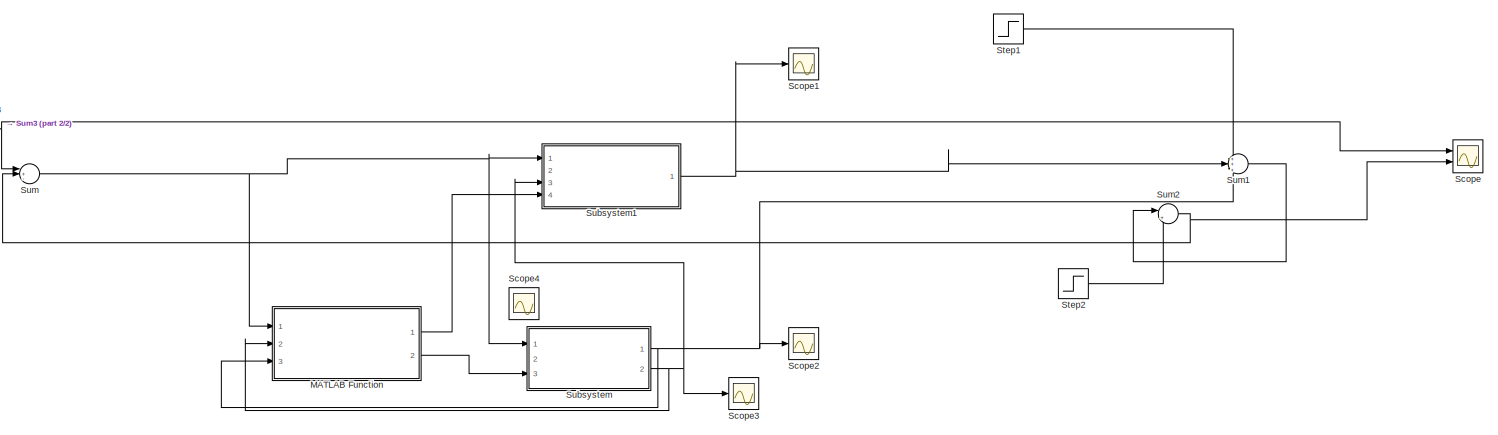
[diagram: root canvas - part 1/2, most of the canvas]
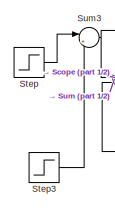
[diagram: root canvas - part 2/2, middle left region]
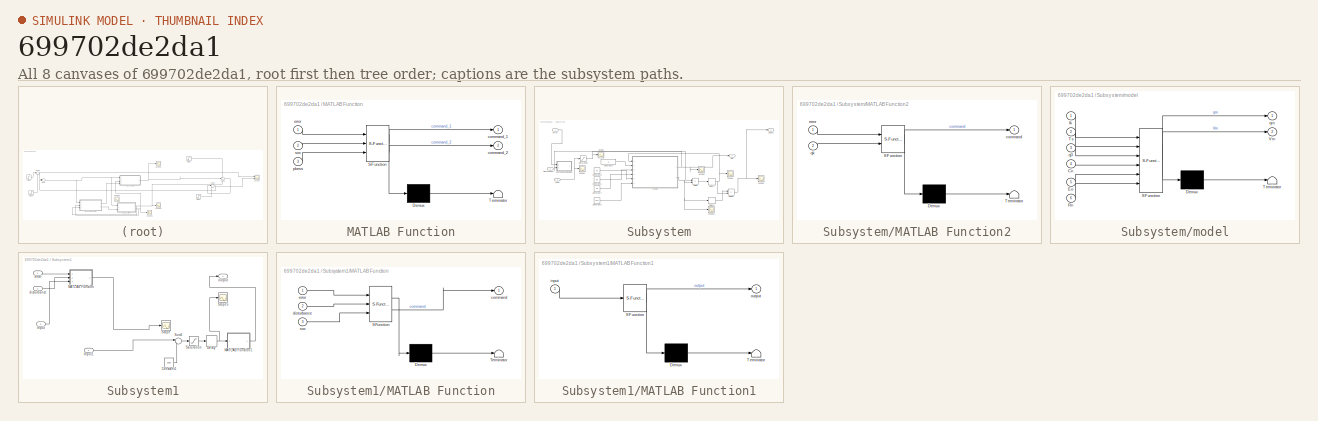
[diagram: thumbnail index - all 8 canvases of the model, root first then tree order]
MODEL slx_699702de2da1
KIND model
CONFIG AbsTol = auto
CONFIG EnableMultiTasking = off
CONFIG FixedStep = auto
CONFIG MaxStep = auto
CONFIG MinStep = auto
CONFIG RelTol = 1e-3
CONFIG SampleTimeConstraint = Unconstrained
CONFIG SolverName = VariableStepAuto
CONFIG StartTime = 0.0
CONFIG StopTime = 2000
BLOCK [SubSystem] MATLAB Function
  ErrorFcn = Stateflow.Translate.translate
  PermitHierarchicalResolution = ExplicitOnly
  Ports = [3, 2]
  RequestExecContextInheritance = off
  SFBlockType = MATLAB Function
  TreatAsAtomicUnit = on
BLOCK [Demux] MATLAB Function/ Demux 
  Outputs = 1
  Ports = [1, 1]
BLOCK [S-Function] MATLAB Function/ SFunction 
  EnableBusSupport = on
  FunctionName = sf_sfun
  PortCounts = [3 3]
  Ports = [3, 3]
  SFcnIsStateOwnerBlock = off
  SFunctionDeploymentMode = off
  Tag = Stateflow S-Function 3
BLOCK [Terminator] MATLAB Function/ Terminator 
BLOCK [Outport] MATLAB Function/command_1
BLOCK [Outport] MATLAB Function/command_2
  Port = 2
BLOCK [Inport] MATLAB Function/error
BLOCK [Inport] MATLAB Function/pbess
  Port = 3
BLOCK [Inport] MATLAB Function/soc
  Port = 2
BLOCK [Scope] Scope
  Floating = off
  NumInputPorts = 2
  Ports = [2]
  ScopeSpecificationString = Simulink.scopes.TimeScopeBlockCfg('CurrentConfiguration', extmgr.ConfigurationSet(extmgr.Configuration('Core','General UI',true),extmgr.Configuration('Core','Source UI',true),extmgr.Configuration('Sources','WiredSimulink',true),extmgr.Configuration('Visuals','Time Domain',true,'SerializedDisplays',{struct('MinYLimReal','938.6839','MaxYLimReal','1551.84487','YLabelReal','','MinYLimMag','938.6839','...<+1445ch>
BLOCK [Scope] Scope1
  Floating = off
  NumInputPorts = 1
  Ports = [1]
  ScopeSpecificationString = Simulink.scopes.TimeScopeBlockCfg('CurrentConfiguration', extmgr.ConfigurationSet(extmgr.Configuration('Core','General UI',true),extmgr.Configuration('Core','Source UI',true),extmgr.Configuration('Sources','WiredSimulink',true,'DataLoggingVariableName','ScopeData1'),extmgr.Configuration('Visuals','Time Domain',true,'SerializedDisplays',{struct('MinYLimReal','952.68511','MaxYLimReal','1425.83403','...<+1467ch>
BLOCK [Scope] Scope2
  Floating = off
  NumInputPorts = 1
  Ports = [1]
  ScopeSpecificationString = Simulink.scopes.TimeScopeBlockCfg('CurrentConfiguration', extmgr.ConfigurationSet(extmgr.Configuration('Core','General UI',true),extmgr.Configuration('Core','Source UI',true),extmgr.Configuration('Sources','WiredSimulink',true,'DataLoggingVariableName','ScopeData2'),extmgr.Configuration('Visuals','Time Domain',true,'SerializedDisplays',{struct('MinYLimReal','-104.13534','MaxYLimReal','152.02665','...<+1437ch>
BLOCK [Scope] Scope3
  Floating = off
  NumInputPorts = 1
  Ports = [1]
  ScopeSpecificationString = Simulink.scopes.TimeScopeBlockCfg('CurrentConfiguration', extmgr.ConfigurationSet(extmgr.Configuration('Core','General UI',true),extmgr.Configuration('Core','Source UI',true),extmgr.Configuration('Sources','WiredSimulink',true,'DataLoggingVariableName','ScopeData3'),extmgr.Configuration('Visuals','Time Domain',true,'SerializedDisplays',{struct('MinYLimReal','25.23044','MaxYLimReal','101.6687','YLa...<+1477ch>
BLOCK [Scope] Scope4
  Floating = off
  NumInputPorts = 1
  Ports = [1]
  ScopeSpecificationString = Simulink.scopes.TimeScopeBlockCfg('CurrentConfiguration', extmgr.ConfigurationSet(extmgr.Configuration('Core','General UI',true),extmgr.Configuration('Core','Source UI',true),extmgr.Configuration('Sources','WiredSimulink',true,'DataLoggingVariableName','ScopeData10'),extmgr.Configuration('Visuals','Time Domain',true),extmgr.Configuration('Tools','Plot Navigation',true),extmgr.Configuration('Tools'...<+41ch>
BLOCK [Step] Step
  After = 1300
  Before = 1000
  Time = 20
BLOCK [Step] Step1
  After = -200
  Time = 100
BLOCK [Step] Step2
  After = 100
  Time = 200
BLOCK [Step] Step3
  After = -100
  Time = 400
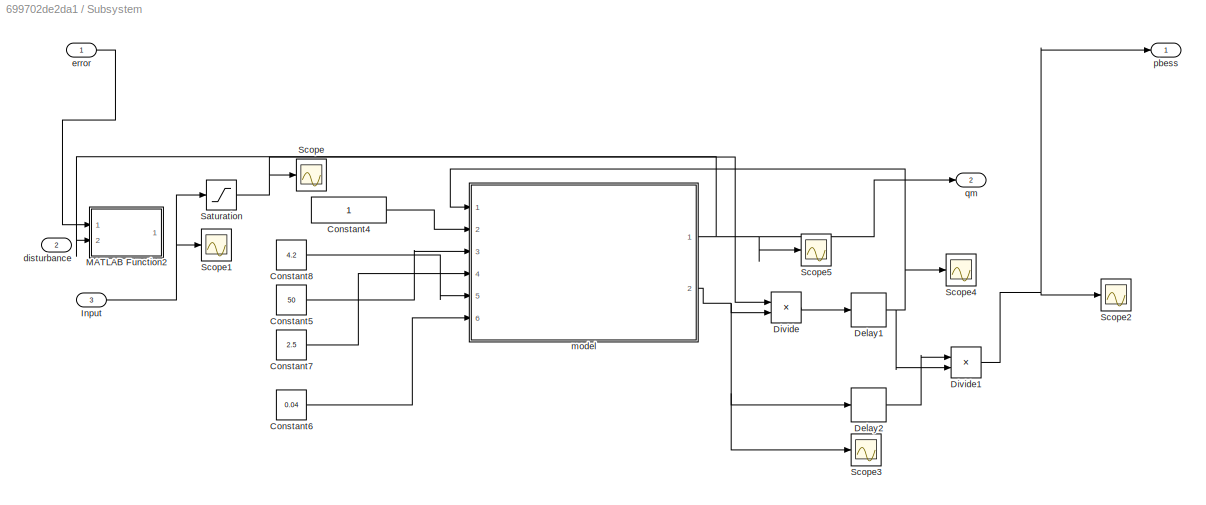
BLOCK [SubSystem] Subsystem
  Ports = [3, 2]
  RequestExecContextInheritance = off
BLOCK [Constant] Subsystem/Constant4
  SampleTime = 1
BLOCK [Constant] Subsystem/Constant5
  Value = 50
BLOCK [Constant] Subsystem/Constant6
  Value = 0.04
BLOCK [Constant] Subsystem/Constant7
  Value = 2.5
BLOCK [Constant] Subsystem/Constant8
  Value = 4.2
BLOCK [Delay] Subsystem/Delay1
  DelayLength = 1
  InitialCondition = 0
  InputPortMap = u0
  NameLocation = right
  Ports = [1, 1]
  SampleTime = 1
BLOCK [Delay] Subsystem/Delay2
  DelayLength = 1
  InitialCondition = 0
  InputPortMap = u0
  NameLocation = right
  Ports = [1, 1]
  SampleTime = 1
BLOCK [Product] Subsystem/Divide
  Inputs = */
  Ports = [2, 1]
BLOCK [Product] Subsystem/Divide1
  Inputs = **
  Ports = [2, 1]
BLOCK [Inport] Subsystem/Input
  Port = 3
BLOCK [SubSystem] Subsystem/MATLAB Function2
  ErrorFcn = Stateflow.Translate.translate
  PermitHierarchicalResolution = ExplicitOnly
  Ports = [2, 1]
  RequestExecContextInheritance = off
  SFBlockType = MATLAB Function
  TreatAsAtomicUnit = on
BLOCK [Demux] Subsystem/MATLAB Function2/ Demux 
  Outputs = 1
  Ports = [1, 1]
BLOCK [S-Function] Subsystem/MATLAB Function2/ SFunction 
  EnableBusSupport = on
  FunctionName = sf_sfun
  PortCounts = [2 2]
  Ports = [2, 2]
  SFcnIsStateOwnerBlock = off
  SFunctionDeploymentMode = off
  Tag = Stateflow S-Function 5
BLOCK [Terminator] Subsystem/MATLAB Function2/ Terminator 
BLOCK [Outport] Subsystem/MATLAB Function2/command
BLOCK [Inport] Subsystem/MATLAB Function2/error
BLOCK [Inport] Subsystem/MATLAB Function2/qk
  Port = 2
BLOCK [Saturate] Subsystem/Saturation
  LowerLimit = -140
  UpperLimit = 140
BLOCK [Scope] Subsystem/Scope
  Floating = off
  NumInputPorts = 1
  Ports = [1]
  ScopeSpecificationString = Simulink.scopes.TimeScopeBlockCfg('CurrentConfiguration', extmgr.ConfigurationSet(extmgr.Configuration('Core','General UI',true),extmgr.Configuration('Core','Source UI',true),extmgr.Configuration('Sources','WiredSimulink',true,'DataLoggingVariableName','ScopeData6'),extmgr.Configuration('Visuals','Time Domain',true,'SerializedDisplays',{struct('MinYLimReal','-104.13534','MaxYLimReal','152.02665','...<+1412ch>
BLOCK [Scope] Subsystem/Scope1
  Floating = off
  NumInputPorts = 1
  Ports = [1]
  ScopeSpecificationString = Simulink.scopes.TimeScopeBlockCfg('CurrentConfiguration', extmgr.ConfigurationSet(extmgr.Configuration('Core','General UI',true),extmgr.Configuration('Core','Source UI',true),extmgr.Configuration('Sources','WiredSimulink',true,'DataLoggingVariableName','ScopeData8'),extmgr.Configuration('Visuals','Time Domain',true,'SerializedDisplays',{struct('MinYLimReal','-104.13534','MaxYLimReal','152.02665','...<+1468ch>
BLOCK [Scope] Subsystem/Scope2
  Floating = off
  NumInputPorts = 1
  Ports = [1]
  ScopeSpecificationString = Simulink.scopes.TimeScopeBlockCfg('CurrentConfiguration', extmgr.ConfigurationSet(extmgr.Configuration('Core','General UI',true),extmgr.Configuration('Core','Source UI',true),extmgr.Configuration('Sources','WiredSimulink',true,'DataLoggingVariableName','ScopeData2'),extmgr.Configuration('Visuals','Time Domain',true,'SerializedDisplays',{struct('MinYLimReal','-104.13534','MaxYLimReal','152.02665','...<+1444ch>
BLOCK [Scope] Subsystem/Scope3
  Floating = off
  NumInputPorts = 1
  Ports = [1]
  ScopeSpecificationString = Simulink.scopes.TimeScopeBlockCfg('CurrentConfiguration', extmgr.ConfigurationSet(extmgr.Configuration('Core','General UI',true),extmgr.Configuration('Core','Source UI',true),extmgr.Configuration('Sources','WiredSimulink',true,'DataLoggingVariableName','ScopeData3'),extmgr.Configuration('Visuals','Time Domain',true,'SerializedDisplays',{struct('MinYLimReal','7.2405','MaxYLimReal','8.52883','YLabel...<+1415ch>
BLOCK [Scope] Subsystem/Scope4
  Floating = off
  NumInputPorts = 1
  Ports = [1]
  ScopeSpecificationString = Simulink.scopes.TimeScopeBlockCfg('CurrentConfiguration', extmgr.ConfigurationSet(extmgr.Configuration('Core','General UI',true),extmgr.Configuration('Core','Source UI',true),extmgr.Configuration('Sources','WiredSimulink',true,'DataLoggingVariableName','ScopeData4'),extmgr.Configuration('Visuals','Time Domain',true,'SerializedDisplays',{struct('MinYLimReal','-13.71159','MaxYLimReal','20.02924','YL...<+1400ch>
BLOCK [Scope] Subsystem/Scope5
  Floating = off
  NumInputPorts = 1
  Ports = [1]
  ScopeSpecificationString = Simulink.scopes.TimeScopeBlockCfg('CurrentConfiguration', extmgr.ConfigurationSet(extmgr.Configuration('Core','General UI',true),extmgr.Configuration('Core','Source UI',true),extmgr.Configuration('Sources','WiredSimulink',true,'DataLoggingVariableName','ScopeData9'),extmgr.Configuration('Visuals','Time Domain',true,'SerializedDisplays',{struct('MinYLimReal','25.09566','MaxYLimReal','102.88167','YL...<+1403ch>
BLOCK [Inport] Subsystem/disturbance
  Port = 2
BLOCK [Inport] Subsystem/error
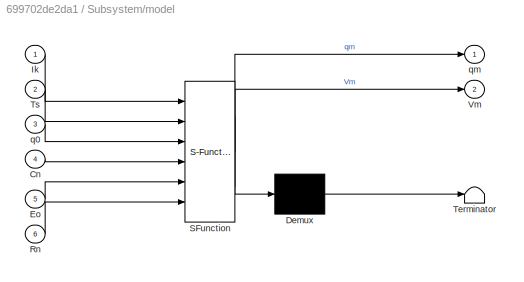
BLOCK [SubSystem] Subsystem/model
  ErrorFcn = Stateflow.Translate.translate
  PermitHierarchicalResolution = ExplicitOnly
  Ports = [6, 2]
  RequestExecContextInheritance = off
  SFBlockType = MATLAB Function
  SystemSampleTime = 1
  TreatAsAtomicUnit = on
BLOCK [Demux] Subsystem/model/ Demux 
  Outputs = 1
  Ports = [1, 1]
BLOCK [S-Function] Subsystem/model/ SFunction 
  EnableBusSupport = on
  FunctionName = sf_sfun
  PortCounts = [6 3]
  Ports = [6, 3]
  SFcnIsStateOwnerBlock = off
  SFunctionDeploymentMode = off
  Tag = Stateflow S-Function 6
BLOCK [Terminator] Subsystem/model/ Terminator 
BLOCK [Inport] Subsystem/model/Cn
  Port = 4
BLOCK [Inport] Subsystem/model/Eo
  Port = 5
BLOCK [Inport] Subsystem/model/Ik
BLOCK [Inport] Subsystem/model/Rn
  Port = 6
BLOCK [Inport] Subsystem/model/Ts
  Port = 2
BLOCK [Outport] Subsystem/model/Vm
  Port = 2
BLOCK [Inport] Subsystem/model/q0
  Port = 3
BLOCK [Outport] Subsystem/model/qm
BLOCK [Outport] Subsystem/pbess
BLOCK [Outport] Subsystem/qm
  Port = 2
BLOCK [SubSystem] Subsystem1
  Ports = [4, 1]
  RequestExecContextInheritance = off
BLOCK [Constant] Subsystem1/Constant1
  Value = 1000
BLOCK [Delay] Subsystem1/Delay
  DelayLength = 1
  InitialCondition = 1000
  InputPortMap = u0
  NameLocation = right
  Ports = [1, 1]
  SampleTime = 1
BLOCK [Inport] Subsystem1/Input
  Port = 3
BLOCK [Inport] Subsystem1/Input1
  Port = 4
BLOCK [SubSystem] Subsystem1/MATLAB Function
  ErrorFcn = Stateflow.Translate.translate
  PermitHierarchicalResolution = ExplicitOnly
  Ports = [3, 1]
  RequestExecContextInheritance = off
  SFBlockType = MATLAB Function
  TreatAsAtomicUnit = on
BLOCK [Demux] Subsystem1/MATLAB Function/ Demux 
  Outputs = 1
  Ports = [1, 1]
BLOCK [S-Function] Subsystem1/MATLAB Function/ SFunction 
  EnableBusSupport = on
  FunctionName = sf_sfun
  PortCounts = [3 2]
  Ports = [3, 2]
  SFcnIsStateOwnerBlock = off
  SFunctionDeploymentMode = off
  Tag = Stateflow S-Function 2
BLOCK [Terminator] Subsystem1/MATLAB Function/ Terminator 
BLOCK [Outport] Subsystem1/MATLAB Function/command
BLOCK [Inport] Subsystem1/MATLAB Function/disturbance
  Port = 2
BLOCK [Inport] Subsystem1/MATLAB Function/error
BLOCK [Inport] Subsystem1/MATLAB Function/soc
  Port = 3
BLOCK [SubSystem] Subsystem1/MATLAB Function1
  ErrorFcn = Stateflow.Translate.translate
  PermitHierarchicalResolution = ExplicitOnly
  Ports = [1, 1]
  RequestExecContextInheritance = off
  SFBlockType = MATLAB Function
  TreatAsAtomicUnit = on
BLOCK [Demux] Subsystem1/MATLAB Function1/ Demux 
  Outputs = 1
  Ports = [1, 1]
BLOCK [S-Function] Subsystem1/MATLAB Function1/ SFunction 
  EnableBusSupport = on
  FunctionName = sf_sfun
  PortCounts = [1 2]
  Ports = [1, 2]
  SFcnIsStateOwnerBlock = off
  SFunctionDeploymentMode = off
  Tag = Stateflow S-Function 1
BLOCK [Terminator] Subsystem1/MATLAB Function1/ Terminator 
BLOCK [Inport] Subsystem1/MATLAB Function1/input
BLOCK [Outport] Subsystem1/MATLAB Function1/output
BLOCK [Saturate] Subsystem1/Saturation
  LowerLimit = 1000
  UpperLimit = 1500
BLOCK [Scope] Subsystem1/Scope
  Floating = off
  NumInputPorts = 1
  Ports = [1]
  ScopeSpecificationString = Simulink.scopes.TimeScopeBlockCfg('CurrentConfiguration', extmgr.ConfigurationSet(extmgr.Configuration('Core','General UI',true),extmgr.Configuration('Core','Source UI',true),extmgr.Configuration('Sources','WiredSimulink',true,'DataLoggingVariableName','ScopeData7'),extmgr.Configuration('Visuals','Time Domain',true,'SerializedDisplays',{struct('MinYLimReal','-48.40363','MaxYLimReal','435.63265','Y...<+1413ch>
BLOCK [Scope] Subsystem1/Scope5
  Floating = off
  NumInputPorts = 1
  Ports = [1]
  ScopeSpecificationString = Simulink.scopes.TimeScopeBlockCfg('CurrentConfiguration', extmgr.ConfigurationSet(extmgr.Configuration('Core','General UI',true),extmgr.Configuration('Core','Source UI',true),extmgr.Configuration('Sources','WiredSimulink',true,'DataLoggingVariableName','ScopeData5'),extmgr.Configuration('Visuals','Time Domain',true,'SerializedDisplays',{struct('MinYLimReal','950.00000','MaxYLimReal','1450.00000','...<+1481ch>
BLOCK [Sum] Subsystem1/Sum3
  Inputs = |++
  Ports = [2, 1]
BLOCK [Inport] Subsystem1/disturbance
  Port = 2
BLOCK [Inport] Subsystem1/error
BLOCK [Outport] Subsystem1/output
BLOCK [Sum] Sum
  Inputs = |+-+
  Ports = [3, 1]
BLOCK [Sum] Sum1
  Inputs = ++|+
  Ports = [3, 1]
BLOCK [Sum] Sum2
  Inputs = |++
  Ports = [2, 1]
BLOCK [Sum] Sum3
  Inputs = |++
  Ports = [2, 1]
LINE MATLAB Function:1 -> Subsystem1:4
LINE MATLAB Function:2 -> Subsystem:3
LINE Step1:1 -> Sum1:1
LINE Step2:1 -> Sum2:2
LINE Step3:1 -> Sum3:2
LINE Step:1 -> Sum3:1
LINE Subsystem/Constant4:1 -> Subsystem/model:2
LINE Subsystem/Constant5:1 -> Subsystem/model:3
LINE Subsystem/Constant6:1 -> Subsystem/model:6
LINE Subsystem/Constant7:1 -> Subsystem/model:4
LINE Subsystem/Constant8:1 -> Subsystem/model:5
NET Subsystem/Delay1:1 -> Subsystem/Divide1:2, Subsystem/Scope4:1, Subsystem/model:1
LINE Subsystem/Delay2:1 -> Subsystem/Divide1:1
NET Subsystem/Divide1:1 -> Subsystem/Scope2:1, Subsystem/pbess:1
LINE Subsystem/Divide:1 -> Subsystem/Delay1:1
NET Subsystem/Input:1 -> Subsystem/Saturation:1, Subsystem/Scope1:1
NET Subsystem/Saturation:1 -> Subsystem/Divide:1, Subsystem/Scope:1
LINE Subsystem/error:1 -> Subsystem/MATLAB Function2:1
NET Subsystem/model:1 -> Subsystem/MATLAB Function2:2, Subsystem/Scope5:1, Subsystem/qm:1
NET Subsystem/model:2 -> Subsystem/Delay2:1, Subsystem/Divide:2, Subsystem/Scope3:1
LINE Subsystem1/Constant1:1 -> Subsystem1/Sum3:2
NET Subsystem1/Delay:1 -> Subsystem1/MATLAB Function1:1, Subsystem1/Scope5:1
LINE Subsystem1/Input1:1 -> Subsystem1/Sum3:1
LINE Subsystem1/Input:1 -> Subsystem1/MATLAB Function:3
LINE Subsystem1/MATLAB Function1:1 -> Subsystem1/output:1
LINE Subsystem1/MATLAB Function:1 -> Subsystem1/Scope:1
LINE Subsystem1/Saturation:1 -> Subsystem1/Delay:1
LINE Subsystem1/Sum3:1 -> Subsystem1/Saturation:1
LINE Subsystem1/disturbance:1 -> Subsystem1/MATLAB Function:2
LINE Subsystem1/error:1 -> Subsystem1/MATLAB Function:1
NET Subsystem1:1 -> Scope1:1, Sum1:2
NET Subsystem:1 -> MATLAB Function:3, Scope2:1, Sum1:3
NET Subsystem:2 -> MATLAB Function:2, Scope3:1, Subsystem1:3
LINE Sum1:1 -> Sum2:1
NET Sum2:1 -> Scope:2, Sum:2
NET Sum3:1 -> Scope:1, Sum:1
NET Sum:1 -> MATLAB Function:1, Subsystem1:1, Subsystem:1
note: NET lines group one-source signal fan-out (src -> all destinations, sorted); 1:1 wires keep LINE
CHART Subsystem1/MATLAB Function1 states=1 transitions=1
  STATE_LABEL 'eML_blk_kernel()'
  STATE_LABEL 'SCRIPT:\nfunction output = fcn(input)\npersistent output_old\nalpha=0.5;\nif isempty(output_old)\n    output_old=1000;\nend\n\n\noutput_new= (1-alpha)*output_old + alpha*input ;\noutput= output_old;\noutput_old=output_new;\n\n'
CHART Subsystem1/MATLAB Function states=1 transitions=1
  STATE_LABEL 'eML_blk_kernel()'
  STATE_LABEL 'SCRIPT:\nfunction command = fcn(error,disturbance,soc)\npersistent z disturbance_old\nkp=0.3; ki=0.3; kf=-0.5;\nif isempty(z)\n    z=0;\n    disturbance_old=0;\nend\n\nif (error >0)\nz=z+error;\nelse\n    if soc <= 95\n        z=z;\n    else\n        z=z+error;\n    end\nend\ncommand= ki*z + kp*error +kf*disturbance_old -kf*disturbance;\ndisturbance_old = disturbance;\n\nend\n\n'
CHART MATLAB Function states=1 transitions=1
  STATE_LABEL 'eML_blk_kernel()'
  STATE_LABEL 'SCRIPT:\nfunction [command_1,command_2] = fcn(error,soc, pbess)\npersistent z1 z2 command_1_old command_2_old\nkp_1=0.3; ki_1=0.3;\nkp_2=0.1; ki_2=0.1;\nif isempty(z1)\n    z1=0;\n    z2=0;\n    command_1_old=0;\n    command_2_old=0;\nend\n    command_1=command_1_old;\n    z2=z2+error;\n    command_2= ki_2*z2 + kp_2*error; \n    if error>0 || soc>= 95 || abs(pbess)>=140\n\n    z1=z1+error;\n    command_1= ki_1*z1 ...<+261ch>'
CHART Subsystem/MATLAB Function2 states=1 transitions=1
  STATE_LABEL 'eML_blk_kernel()'
  STATE_LABEL 'SCRIPT:\nfunction command = fcn(error,qk)\npersistent z disturbance_old\nkp=0.1; ki=0.1; kf=-1;\nif isempty(z)\n    z=0;\n    disturbance_old=0;\nend\n\nif error <0\n z=z+error;\nelse\n    \nend\n\ncommand= ki*z + kp*error +0*kf*disturbance_old;\nif (qk>=95 && command<=0)\n    command=0;\n    z=0;\n\nelseif  (qk<=5 && command>=0)\n    command=0;\n    z=0;\n\nend\n\n'
CHART Subsystem/model states=1 transitions=1
  STATE_LABEL 'eML_blk_kernel()'
  STATE_LABEL 'SCRIPT:\nfunction [qm,Vm]= battery_twin(Ik,Ts, q0,Cn, Eo,Rn)\n\npersistent qk Vk \nIk=Ik;\n% --- Parameters Battery ---\nN=2;\n\n% Parameters model Voc\nK1=0.1;\nK2=1;\n\n% Parameters model Resistance\nK3=0.25;\nK4=0.04;\nR0=0.005;\n\n%Nominal capacity\nCr =N*Cn;\n\n\n% --- initial states ----\n\n\nif isempty(qk)\n    qk=q0;\nend\nif isempty(Vk) \n    Vk=N*Eo; \nend\n\n\n% --- dynamic model -----\n\n\nq1 = qk - Ts*Ik*100*1/(3600*Cr...<+221ch>'
CHART  states=0 transitions=0
CHART  states=0 transitions=0
CHART  states=0 transitions=0
CHART  states=0 transitions=0
CHART  states=0 transitions=0
